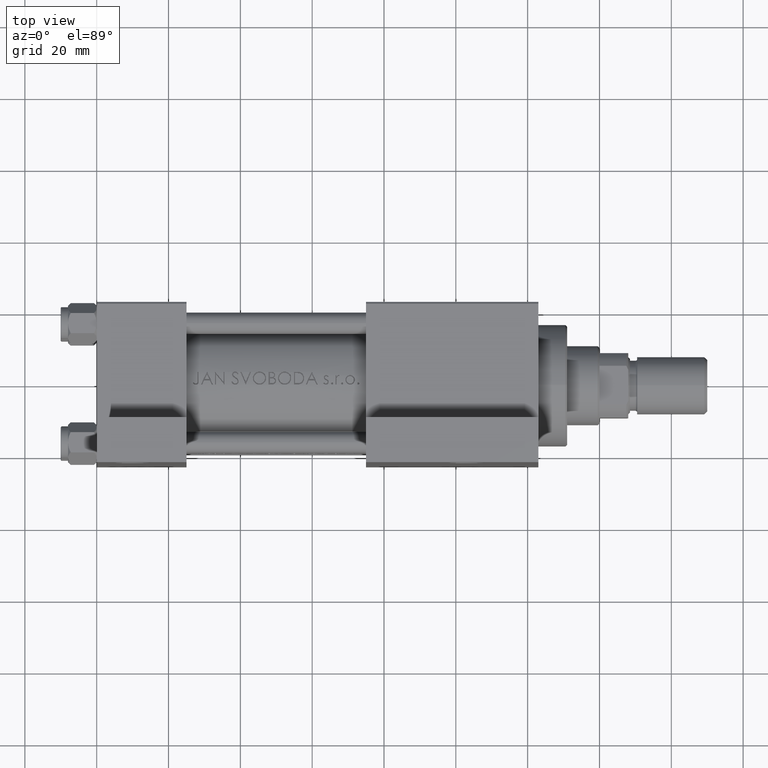
[diagram: clean part render]
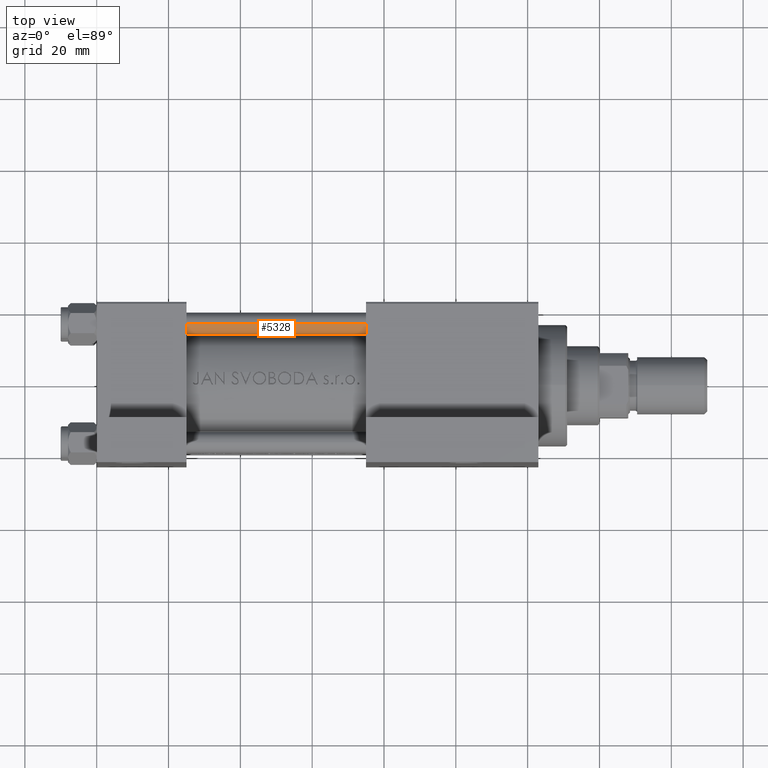
[diagram: same view with one face highlighted and labeled with its STEP entity id]
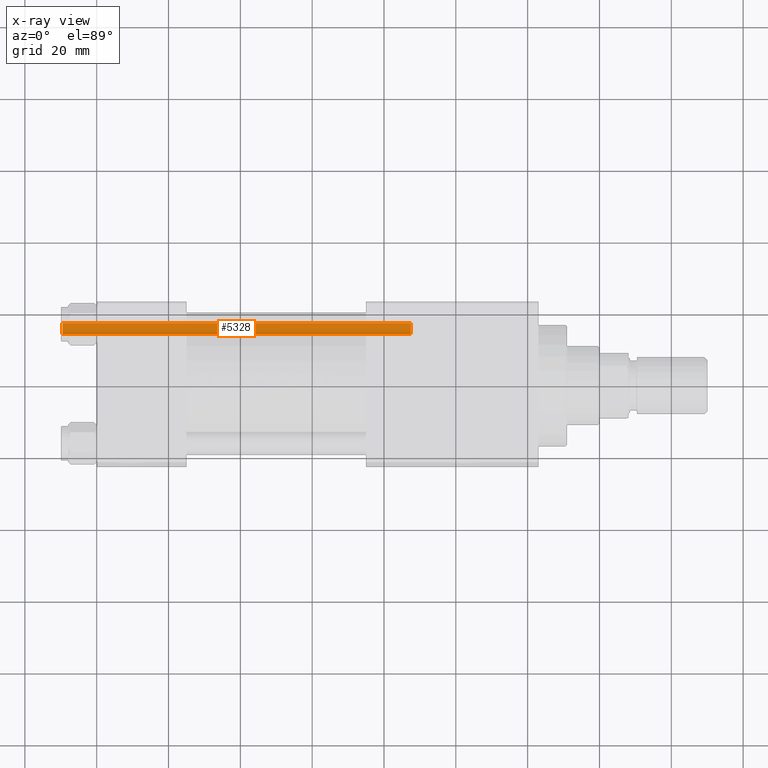
[diagram: x-ray of the same camera — body ghosted, the highlighted face saturated]
A machine part, top view. The second image highlights one B-rep face of the part: STEP entity #5328.
The next image is the same camera in x-ray: the body ghosted, the highlighted face saturated — about 0% of this face is hidden behind the body in this view.
In plain terms, the highlighted cylindrical surface (edge-blend (fillet) strip) has radius 3 mm, axis along (-1, -0, -0).
Its self-contained STEP definition (entity closure, byte-faithful):
#1280 = EDGE_CURVE ( 'NONE', #39603, #19025, #12105, .T. ) ;
#2250 = VECTOR ( 'NONE', #15524, 1000.000000000000000 ) ;
#5046 = CARTESIAN_POINT ( 'NONE',  ( 3.000000000000000444, 3.673940397442060361E-16, 97.50000000000001421 ) ) ;
#5168 = DIRECTION ( 'NONE',  ( -0.000000000000000000, -0.000000000000000000, -1.000000000000000000 ) ) ;
#5328 = ADVANCED_FACE ( 'NONE', ( #37244 ), #22675, .T. ) ;
#5567 = EDGE_CURVE ( 'NONE', #15775, #9796, #8812, .T. ) ;
#5610 = ORIENTED_EDGE ( 'NONE', *, *, #47385, .T. ) ;
#8812 = LINE ( 'NONE', #23639, #16352 ) ;
#9796 = VERTEX_POINT ( 'NONE', #35450 ) ;
#12105 = LINE ( 'NONE', #26723, #2250 ) ;
#13220 = CIRCLE ( 'NONE', #43511, 3.000000000000000444 ) ;
#13345 = EDGE_CURVE ( 'NONE', #19025, #9796, #21261, .T. ) ;
#15524 = DIRECTION ( 'NONE',  ( -0.000000000000000000, -0.000000000000000000, -1.000000000000000000 ) ) ;
#15775 = VERTEX_POINT ( 'NONE', #5046 ) ;
#16327 = ORIENTED_EDGE ( 'NONE', *, *, #5567, .F. ) ;
#16352 = VECTOR ( 'NONE', #5168, 1000.000000000000000 ) ;
#17507 = EDGE_LOOP ( 'NONE', ( #16327, #5610, #23356, #20986 ) ) ;
#17633 = CARTESIAN_POINT ( 'NONE',  ( 0.000000000000000000, 0.000000000000000000, 97.50000000000001421 ) ) ;
#18010 = CARTESIAN_POINT ( 'NONE',  ( -3.000000000000000444, 0.000000000000000000, 0.5000000000000281997 ) ) ;
#19025 = VERTEX_POINT ( 'NONE', #18010 ) ;
#20986 = ORIENTED_EDGE ( 'NONE', *, *, #13345, .T. ) ;
#21261 = CIRCLE ( 'NONE', #46870, 3.000000000000000444 ) ;
#22530 = AXIS2_PLACEMENT_3D ( 'NONE', #34343, #45040, #34107 ) ;
#22675 = CYLINDRICAL_SURFACE ( 'NONE', #22530, 3.000000000000000444 ) ;
#22873 = DIRECTION ( 'NONE',  ( -0.000000000000000000, -0.000000000000000000, 1.000000000000000000 ) ) ;
#23356 = ORIENTED_EDGE ( 'NONE', *, *, #1280, .T. ) ;
#23639 = CARTESIAN_POINT ( 'NONE',  ( 3.000000000000000444, 3.673940397442060361E-16, 98.00000000000000000 ) ) ;
#25410 = DIRECTION ( 'NONE',  ( 1.000000000000000000, 0.000000000000000000, 0.000000000000000000 ) ) ;
#26538 = CARTESIAN_POINT ( 'NONE',  ( 0.000000000000000000, 0.000000000000000000, 0.5000000000000281997 ) ) ;
#26723 = CARTESIAN_POINT ( 'NONE',  ( -3.000000000000000444, 0.000000000000000000, 98.00000000000000000 ) ) ;
#32486 = DIRECTION ( 'NONE',  ( 0.000000000000000000, 0.000000000000000000, -1.000000000000000000 ) ) ;
#33852 = CARTESIAN_POINT ( 'NONE',  ( -3.000000000000000444, 0.000000000000000000, 97.50000000000001421 ) ) ;
#34107 = DIRECTION ( 'NONE',  ( -1.000000000000000000, 0.000000000000000000, 0.000000000000000000 ) ) ;
#34343 = CARTESIAN_POINT ( 'NONE',  ( 0.000000000000000000, 0.000000000000000000, 98.00000000000000000 ) ) ;
#35450 = CARTESIAN_POINT ( 'NONE',  ( 3.000000000000000444, 3.673940397442060361E-16, 0.5000000000000281997 ) ) ;
#37244 = FACE_OUTER_BOUND ( 'NONE', #17507, .T. ) ;
#37687 = DIRECTION ( 'NONE',  ( 1.000000000000000000, 0.000000000000000000, 0.000000000000000000 ) ) ;
#39603 = VERTEX_POINT ( 'NONE', #33852 ) ;
#43511 = AXIS2_PLACEMENT_3D ( 'NONE', #17633, #32486, #25410 ) ;
#45040 = DIRECTION ( 'NONE',  ( -0.000000000000000000, -0.000000000000000000, -1.000000000000000000 ) ) ;
#46870 = AXIS2_PLACEMENT_3D ( 'NONE', #26538, #22873, #37687 ) ;
#47385 = EDGE_CURVE ( 'NONE', #15775, #39603, #13220, .T. ) ;